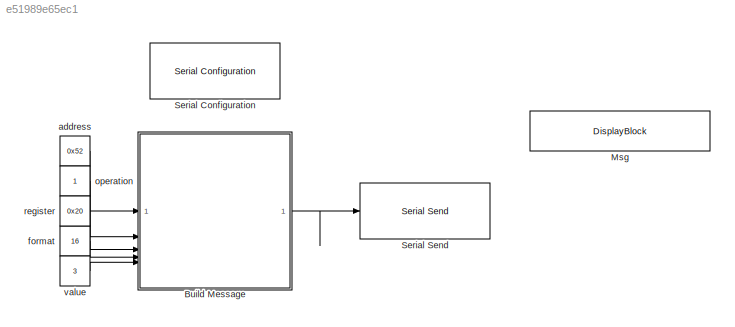
MODEL slx_e51989e65ec1
KIND model
CONFIG AbsTol = auto
CONFIG EnableMultiTasking = on
CONFIG FixedStep = 1e-3
CONFIG MaxStep = auto
CONFIG MinStep = auto
CONFIG RelTol = 1e-3
CONFIG SampleTimeConstraint = Unconstrained
CONFIG SolverName = FixedStepAuto
CONFIG StartTime = 0.0
CONFIG StopTime = 10
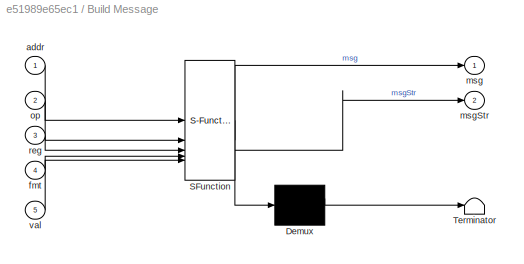
BLOCK [SubSystem] Build Message
  ErrorFcn = Stateflow.Translate.translate
  PermitHierarchicalResolution = ExplicitOnly
  SFBlockType = MATLAB Function
  TreatAsAtomicUnit = on
BLOCK [Demux] Build Message/ Demux 
  Outputs = 1
BLOCK [S-Function] Build Message/ SFunction 
  EnableBusSupport = on
  FunctionName = sf_sfun
  PortCounts = [5 3]
  SFcnIsStateOwnerBlock = off
  SFunctionDeploymentMode = off
  Tag = Stateflow S-Function 2
BLOCK [Terminator] Build Message/ Terminator 
BLOCK [Inport] Build Message/addr
BLOCK [Inport] Build Message/fmt
  Port = 4
BLOCK [Outport] Build Message/msg
BLOCK [Outport] Build Message/msgStr
  Port = 2
BLOCK [Inport] Build Message/op
  Port = 2
BLOCK [Inport] Build Message/reg
  Port = 3
BLOCK [Inport] Build Message/val
  Port = 5
BLOCK [DisplayBlock] Msg
  LabelPosition = Hide
  NameLocation = right
  Transparency = 1
BLOCK [Reference] Serial Configuration  REF=instrumentseriallib/Serial Configuration
  LibrarySourceBlock = instrumentlib/Serial Configuration
  Priority = -200000
  SourceBlock = instrumentseriallib/Serial Configuration
  SourceType = system.SerialConfiguration
BLOCK [Reference] Serial Send  REF=instrumentseriallib/Serial Send
  LibrarySourceBlock = instrumentlib/Serial Send
  Priority = 1
  SourceBlock = instrumentseriallib/Serial Send
  SourceType = system.SerialSend
BLOCK [Constant] address
  NameLocation = left
  Value = 0x52
BLOCK [Constant] format
  NameLocation = left
  Value = 16
BLOCK [Constant] operation
  NameLocation = left
  OutDataTypeStr = boolean
BLOCK [Constant] register
  NameLocation = left
  Value = 0x20
BLOCK [Constant] value
  NameLocation = left
  Value = 3
LINE Build Message:1 -> Serial Send:1
LINE address:1 -> Build Message:1
LINE format:1 -> Build Message:4
LINE operation:1 -> Build Message:2
LINE register:1 -> Build Message:3
LINE value:1 -> Build Message:5
CHART Build Message states=1 transitions=1
  STATE_LABEL 'eML_blk_kernel()'
  STATE_LABEL 'SCRIPT:\nfunction [msg, msgStr] = fcn(addr, op, reg, fmt, val)\n\n% indirizzo\naddr = toHexString(addr);\n\n% operazione\nif op\n    op = "w";\nelse\n    op = "r";\nend\n\n% registro\nreg = toHexString(reg);\n\n% formato\nif fmt > 100\n    tempFmt = \'i\';\n    fmt = fmt - 100;\nelse\n    tempFmt = \'u\';\nend\n\nfmt = tempFmt + string(fmt);\n\n% messaggio\nmsg = zeros(1, 32, \'uint8\');\n\nmsgStr = addr + " " + op + " " + reg + " ...<+161ch>'
CHART  states=0 transitions=0
